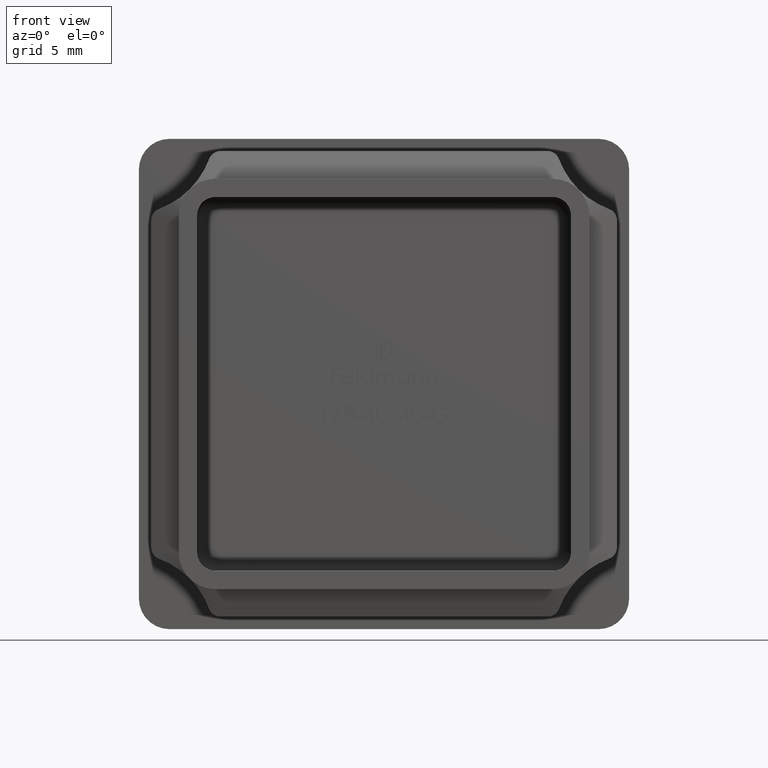
[diagram: clean part render]
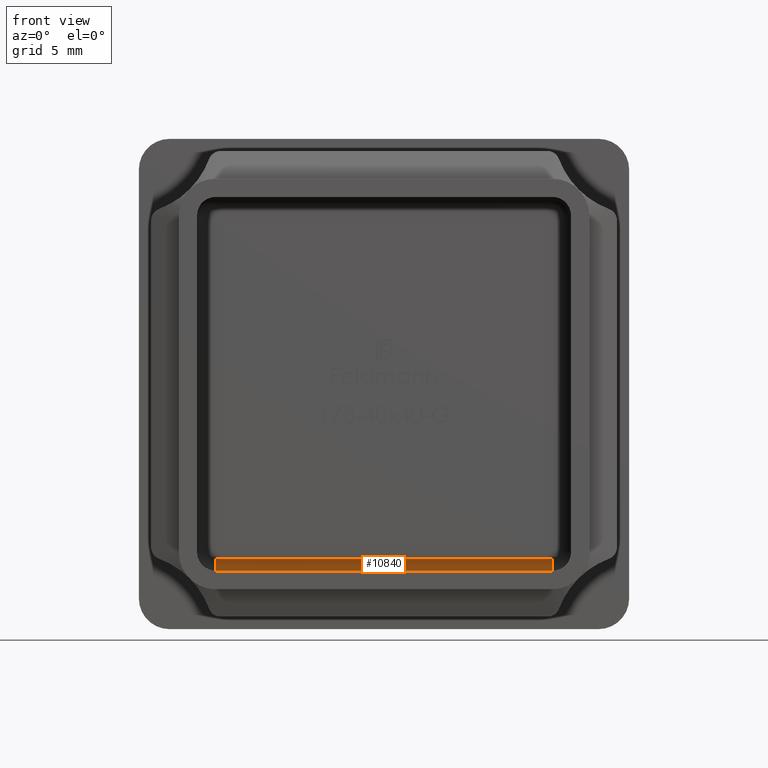
[diagram: same view with one face highlighted and labeled with its STEP entity id]
A machine part, front view. The second image highlights one B-rep face of the part: STEP entity #10840.
In plain terms, the highlighted cylindrical surface (edge-blend (fillet) strip) has radius 1 mm, axis along (1, -0, 0).
Its self-contained STEP definition (entity closure, byte-faithful):
#469 = CARTESIAN_POINT ( 'NONE',  ( 0.000000000000000000, -1.000000000000000000, -14.24999999999999822 ) ) ;
#817 = CIRCLE ( 'NONE', #16885, 1.000000000000000888 ) ;
#1344 = CARTESIAN_POINT ( 'NONE',  ( 13.74999999999999822, -0.9999999999999991118, -15.24999999999999822 ) ) ;
#1462 = CARTESIAN_POINT ( 'NONE',  ( -13.75000000000000533, -0.9999999999999991118, -15.24999999999999822 ) ) ;
#1847 = AXIS2_PLACEMENT_3D ( 'NONE', #469, #18041, #19498 ) ;
#2587 = DIRECTION ( 'NONE',  ( 1.000000000000000000, -0.000000000000000000, 0.000000000000000000 ) ) ;
#3448 = EDGE_CURVE ( 'NONE', #8844, #7566, #9896, .T. ) ;
#3646 = CARTESIAN_POINT ( 'NONE',  ( 0.000000000000000000, 0.000000000000000000, -14.24999999999999822 ) ) ;
#3971 = ORIENTED_EDGE ( 'NONE', *, *, #3448, .F. ) ;
#6526 = CYLINDRICAL_SURFACE ( 'NONE', #1847, 1.000000000000000888 ) ;
#6544 = CIRCLE ( 'NONE', #16096, 1.000000000000000888 ) ;
#6582 = VECTOR ( 'NONE', #2587, 1000.000000000000000 ) ;
#7366 = EDGE_CURVE ( 'NONE', #13120, #16764, #17499, .T. ) ;
#7566 = VERTEX_POINT ( 'NONE', #1462 ) ;
#8554 = DIRECTION ( 'NONE',  ( 0.000000000000000000, 0.000000000000000000, -1.000000000000000000 ) ) ;
#8844 = VERTEX_POINT ( 'NONE', #1344 ) ;
#9374 = EDGE_CURVE ( 'NONE', #7566, #13120, #6544, .T. ) ;
#9437 = EDGE_CURVE ( 'NONE', #16764, #8844, #817, .T. ) ;
#9492 = FACE_OUTER_BOUND ( 'NONE', #14020, .T. ) ;
#9896 = LINE ( 'NONE', #10302, #20577 ) ;
#10302 = CARTESIAN_POINT ( 'NONE',  ( -13.75000000000000533, -0.9999999999999991118, -15.24999999999999822 ) ) ;
#10742 = CARTESIAN_POINT ( 'NONE',  ( 13.74999999999999822, 0.000000000000000000, -14.24999999999999822 ) ) ;
#10840 = ADVANCED_FACE ( 'NONE', ( #9492 ), #6526, .F. ) ;
#13120 = VERTEX_POINT ( 'NONE', #16397 ) ;
#13267 = DIRECTION ( 'NONE',  ( 1.000000000000000000, -0.000000000000000000, 0.000000000000000000 ) ) ;
#13765 = ORIENTED_EDGE ( 'NONE', *, *, #9374, .F. ) ;
#14020 = EDGE_LOOP ( 'NONE', ( #13765, #3971, #18019, #18779 ) ) ;
#14701 = DIRECTION ( 'NONE',  ( -1.000000000000000000, -0.000000000000000000, -0.000000000000000000 ) ) ;
#14954 = CARTESIAN_POINT ( 'NONE',  ( -13.75000000000000533, -1.000000000000000000, -14.24999999999999822 ) ) ;
#16096 = AXIS2_PLACEMENT_3D ( 'NONE', #14954, #13267, #8554 ) ;
#16397 = CARTESIAN_POINT ( 'NONE',  ( -13.75000000000000533, 0.000000000000000000, -14.24999999999999822 ) ) ;
#16764 = VERTEX_POINT ( 'NONE', #10742 ) ;
#16885 = AXIS2_PLACEMENT_3D ( 'NONE', #18117, #17987, #19725 ) ;
#17499 = LINE ( 'NONE', #3646, #6582 ) ;
#17987 = DIRECTION ( 'NONE',  ( -1.000000000000000000, 0.000000000000000000, 0.000000000000000000 ) ) ;
#18019 = ORIENTED_EDGE ( 'NONE', *, *, #9437, .F. ) ;
#18041 = DIRECTION ( 'NONE',  ( 1.000000000000000000, -0.000000000000000000, 0.000000000000000000 ) ) ;
#18117 = CARTESIAN_POINT ( 'NONE',  ( 13.74999999999999822, -1.000000000000000000, -14.24999999999999822 ) ) ;
#18779 = ORIENTED_EDGE ( 'NONE', *, *, #7366, .F. ) ;
#19498 = DIRECTION ( 'NONE',  ( 0.000000000000000000, 0.000000000000000000, -1.000000000000000000 ) ) ;
#19725 = DIRECTION ( 'NONE',  ( 0.000000000000000000, 0.000000000000000000, 1.000000000000000000 ) ) ;
#20577 = VECTOR ( 'NONE', #14701, 1000.000000000000000 ) ;